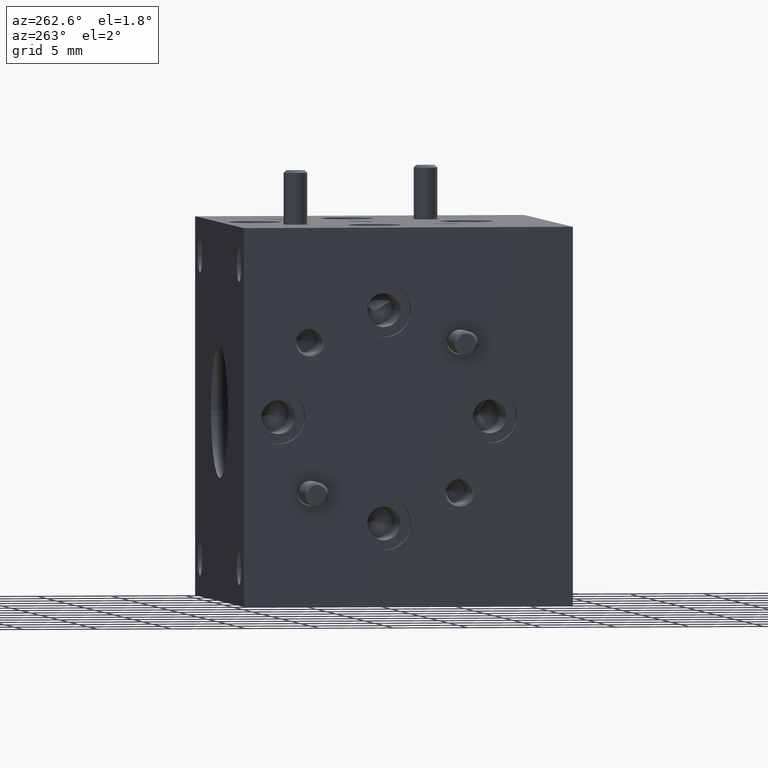
[diagram: clean part render]
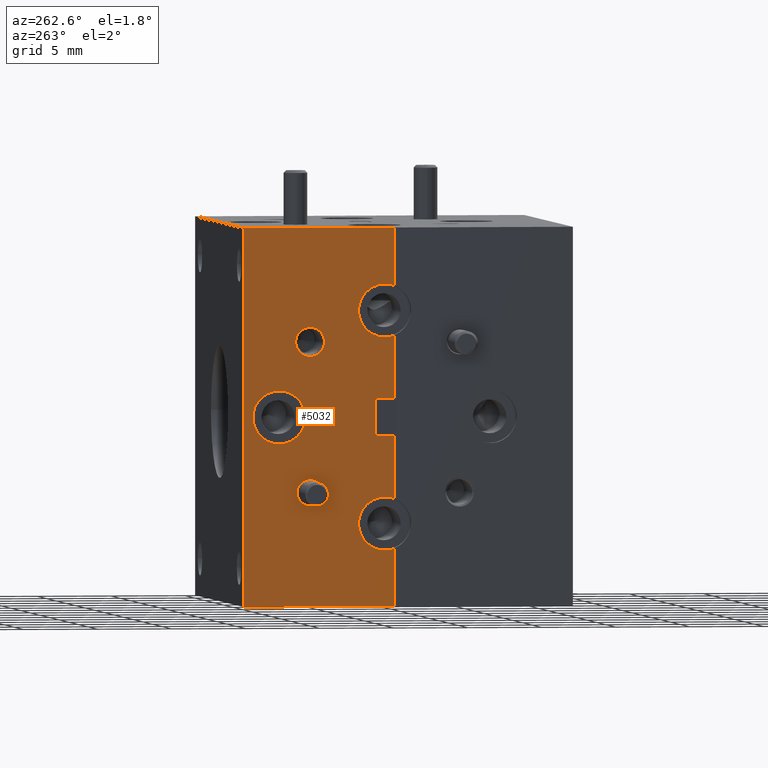
[diagram: same view with one face highlighted and labeled with its STEP entity id]
A machine part, auxiliary view. The second image highlights one B-rep face of the part: STEP entity #5032.
In plain terms, the highlighted planar face has unit normal (1, 0, -0).
Its self-contained STEP definition (entity closure, byte-faithful):
#89 = VERTEX_POINT ( 'NONE', #4391 ) ;
#350 = CARTESIAN_POINT ( 'NONE',  ( -0.5000000000000001100, 0.5000000000000001100, -0.2812499999999999400 ) ) ;
#382 = ORIENTED_EDGE ( 'NONE', *, *, #1348, .F. ) ;
#387 = VERTEX_POINT ( 'NONE', #9523 ) ;
#418 = VECTOR ( 'NONE', #3373, 39.37007874015748100 ) ;
#598 = CARTESIAN_POINT ( 'NONE',  ( -0.4999999999999997200, 0.8750000000000001100, 0.5000000000000003300 ) ) ;
#639 = ORIENTED_EDGE ( 'NONE', *, *, #7945, .F. ) ;
#683 = VERTEX_POINT ( 'NONE', #8428 ) ;
#685 = DIRECTION ( 'NONE',  ( 1.000000000000000000, 3.836456603060711000E-033, -4.996003610813204400E-016 ) ) ;
#698 = VERTEX_POINT ( 'NONE', #6007 ) ;
#735 = FACE_BOUND ( 'NONE', #3974, .T. ) ;
#744 = EDGE_CURVE ( 'NONE', #6267, #5608, #4653, .T. ) ;
#778 = VERTEX_POINT ( 'NONE', #2317 ) ;
#779 = CIRCLE ( 'NONE', #8604, 0.07000000000000003400 ) ;
#822 = DIRECTION ( 'NONE',  ( -1.000000000000000000, 7.679050901318801200E-018, 4.996003610813203400E-016 ) ) ;
#909 = CIRCLE ( 'NONE', #1688, 0.06999999999999985400 ) ;
#923 = CIRCLE ( 'NONE', #6819, 0.06999999999999985400 ) ;
#955 = ORIENTED_EDGE ( 'NONE', *, *, #1926, .F. ) ;
#976 = CARTESIAN_POINT ( 'NONE',  ( -0.5000000000000001100, 0.5000000000000001100, -0.2112499999999999400 ) ) ;
#1007 = VERTEX_POINT ( 'NONE', #7473 ) ;
#1048 = EDGE_CURVE ( 'NONE', #9516, #6267, #4918, .T. ) ;
#1098 = DIRECTION ( 'NONE',  ( 0.0000000000000000000, 0.0000000000000000000, 1.000000000000000000 ) ) ;
#1172 = AXIS2_PLACEMENT_3D ( 'NONE', #5731, #8958, #1098 ) ;
#1219 = EDGE_CURVE ( 'NONE', #7561, #2741, #8818, .T. ) ;
#1348 = EDGE_CURVE ( 'NONE', #89, #698, #923, .T. ) ;
#1369 = VECTOR ( 'NONE', #9622, 39.37007874015748100 ) ;
#1525 = ORIENTED_EDGE ( 'NONE', *, *, #4065, .T. ) ;
#1531 = VECTOR ( 'NONE', #2864, 39.37007874015748100 ) ;
#1539 = VECTOR ( 'NONE', #7253, 39.37007874015748100 ) ;
#1597 = LINE ( 'NONE', #5864, #1369 ) ;
#1671 = LINE ( 'NONE', #9991, #9451 ) ;
#1688 = AXIS2_PLACEMENT_3D ( 'NONE', #3617, #7582, #9126 ) ;
#1815 = VECTOR ( 'NONE', #6663, 39.37007874015748100 ) ;
#1926 = EDGE_CURVE ( 'NONE', #8378, #2894, #5509, .T. ) ;
#1943 = CARTESIAN_POINT ( 'NONE',  ( -0.5000000000020518000, 0.6988737822087165400, -0.1988737822087162700 ) ) ;
#2045 = AXIS2_PLACEMENT_3D ( 'NONE', #350, #7285, #4212 ) ;
#2053 = EDGE_LOOP ( 'NONE', ( #4079, #5567 ) ) ;
#2141 = DIRECTION ( 'NONE',  ( -1.000000000000000000, 7.679050901318799600E-018, 4.996003610813203400E-016 ) ) ;
#2167 = ORIENTED_EDGE ( 'NONE', *, *, #8974, .F. ) ;
#2180 = EDGE_CURVE ( 'NONE', #5608, #5479, #4911, .T. ) ;
#2211 = CARTESIAN_POINT ( 'NONE',  ( -0.4999999999999997200, 0.4750000000000000300, 0.5000000000000004400 ) ) ;
#2228 = DIRECTION ( 'NONE',  ( -4.996003610813204400E-016, 0.0000000000000000000, -1.000000000000000000 ) ) ;
#2249 = VERTEX_POINT ( 'NONE', #6095 ) ;
#2317 = CARTESIAN_POINT ( 'NONE',  ( -0.5000000000000001100, 0.4750000000000000300, -0.2158665158468898400 ) ) ;
#2423 = CARTESIAN_POINT ( 'NONE',  ( -0.4999999999999997800, 0.5000000000000001100, 0.3512500000000003400 ) ) ;
#2741 = VERTEX_POINT ( 'NONE', #7593 ) ;
#2864 = DIRECTION ( 'NONE',  ( -4.996003610813204400E-016, 0.0000000000000000000, -1.000000000000000000 ) ) ;
#2894 = VERTEX_POINT ( 'NONE', #7956 ) ;
#3011 = EDGE_LOOP ( 'NONE', ( #7225, #2167, #639, #6124, #4760, #5959, #8045, #3854, #6422, #4666, #3586, #1525, #5625, #9815, #955, #7807 ) ) ;
#3085 = EDGE_CURVE ( 'NONE', #3467, #8378, #7055, .T. ) ;
#3147 = FACE_OUTER_BOUND ( 'NONE', #3011, .T. ) ;
#3230 = CARTESIAN_POINT ( 'NONE',  ( -0.4999999999999998300, 0.4750000000000000300, 0.3466334841531104000 ) ) ;
#3244 = CARTESIAN_POINT ( 'NONE',  ( -0.4999999999999998300, 0.4750000000000000300, 0.2158665158468901200 ) ) ;
#3267 = ORIENTED_EDGE ( 'NONE', *, *, #8487, .F. ) ;
#3287 = EDGE_CURVE ( 'NONE', #5479, #5650, #779, .T. ) ;
#3294 = DIRECTION ( 'NONE',  ( 0.0000000000000000000, 0.0000000000000000000, 1.000000000000000000 ) ) ;
#3324 = EDGE_LOOP ( 'NONE', ( #382, #7672 ) ) ;
#3373 = DIRECTION ( 'NONE',  ( -4.996003610813204400E-016, 0.0000000000000000000, -1.000000000000000000 ) ) ;
#3428 = CARTESIAN_POINT ( 'NONE',  ( -0.4999999999946648200, 0.6988737822087165400, 0.1988737822087165400 ) ) ;
#3467 = VERTEX_POINT ( 'NONE', #976 ) ;
#3504 = DIRECTION ( 'NONE',  ( 9.756599977372368600E-016, 0.0000000000000000000, 1.000000000000000000 ) ) ;
#3550 = DIRECTION ( 'NONE',  ( 0.0000000000000000000, -1.000000000000000000, 0.0000000000000000000 ) ) ;
#3586 = ORIENTED_EDGE ( 'NONE', *, *, #3886, .F. ) ;
#3617 = CARTESIAN_POINT ( 'NONE',  ( -0.5000000000000000000, 0.7812500000000000000, 2.498937752317294800E-016 ) ) ;
#3679 = EDGE_CURVE ( 'NONE', #2741, #7561, #9760, .T. ) ;
#3710 = DIRECTION ( 'NONE',  ( -1.000000000000000000, 7.679050901318801200E-018, 4.996003610813203400E-016 ) ) ;
#3748 = DIRECTION ( 'NONE',  ( -1.000000000000000000, 7.679050901318801200E-018, 4.996003610813203400E-016 ) ) ;
#3854 = ORIENTED_EDGE ( 'NONE', *, *, #2180, .F. ) ;
#3886 = EDGE_CURVE ( 'NONE', #8155, #9516, #9022, .T. ) ;
#3897 = CARTESIAN_POINT ( 'NONE',  ( -0.4999999999999998300, 0.5000000000000001100, 0.2812500000000002800 ) ) ;
#3949 = CIRCLE ( 'NONE', #1172, 0.03849999999589469300 ) ;
#3974 = EDGE_LOOP ( 'NONE', ( #3267, #9403 ) ) ;
#3993 = LINE ( 'NONE', #7828, #9113 ) ;
#3998 = EDGE_CURVE ( 'NONE', #778, #3467, #6079, .T. ) ;
#4065 = EDGE_CURVE ( 'NONE', #8155, #7221, #1597, .T. ) ;
#4079 = ORIENTED_EDGE ( 'NONE', *, *, #3679, .F. ) ;
#4212 = DIRECTION ( 'NONE',  ( 9.756599977372368600E-016, 0.0000000000000000000, 1.000000000000000000 ) ) ;
#4261 = DIRECTION ( 'NONE',  ( -1.000000000000000000, 9.826791343106473700E-016, 0.0000000000000000000 ) ) ;
#4391 = CARTESIAN_POINT ( 'NONE',  ( -0.4999999999999999400, 0.7812500000000000000, 0.07000000000000010400 ) ) ;
#4477 = DIRECTION ( 'NONE',  ( 9.756599977372364700E-016, 0.0000000000000000000, 1.000000000000000000 ) ) ;
#4503 = CARTESIAN_POINT ( 'NONE',  ( -0.4999999999999998300, 0.5000000000000001100, 0.2812500000000002800 ) ) ;
#4557 = AXIS2_PLACEMENT_3D ( 'NONE', #8142, #4261, #9722 ) ;
#4591 = CARTESIAN_POINT ( 'NONE',  ( -0.5000000000000001100, 0.5000000000000001100, -0.2812499999999999400 ) ) ;
#4624 = VECTOR ( 'NONE', #5587, 39.37007874015748100 ) ;
#4653 = CIRCLE ( 'NONE', #9556, 0.07000000000000003400 ) ;
#4655 = DIRECTION ( 'NONE',  ( -1.000000000000000000, 7.679050901318802700E-018, 4.996003610813203400E-016 ) ) ;
#4666 = ORIENTED_EDGE ( 'NONE', *, *, #1048, .F. ) ;
#4760 = ORIENTED_EDGE ( 'NONE', *, *, #5456, .F. ) ;
#4868 = AXIS2_PLACEMENT_3D ( 'NONE', #3897, #822, #7763 ) ;
#4911 = CIRCLE ( 'NONE', #4868, 0.07000000000000003400 ) ;
#4918 = LINE ( 'NONE', #7509, #1531 ) ;
#5032 = ADVANCED_FACE ( 'NONE', ( #3147, #9000, #735, #8262 ), #8385, .F. ) ;
#5102 = CARTESIAN_POINT ( 'NONE',  ( -0.4999999999999999400, 0.5000000000000001100, 0.2112500000000002400 ) ) ;
#5219 = EDGE_CURVE ( 'NONE', #2894, #387, #3993, .T. ) ;
#5260 = VERTEX_POINT ( 'NONE', #6389 ) ;
#5275 = DIRECTION ( 'NONE',  ( 9.756599977372388400E-016, 0.0000000000000000000, 1.000000000000000000 ) ) ;
#5297 = LINE ( 'NONE', #9190, #6981 ) ;
#5456 = EDGE_CURVE ( 'NONE', #683, #9473, #8001, .T. ) ;
#5479 = VERTEX_POINT ( 'NONE', #5102 ) ;
#5508 = CARTESIAN_POINT ( 'NONE',  ( -0.4999999999999999400, 0.5250000000000000200, 0.05000000000000021100 ) ) ;
#5509 = CIRCLE ( 'NONE', #6623, 0.07000000000000000700 ) ;
#5567 = ORIENTED_EDGE ( 'NONE', *, *, #1219, .F. ) ;
#5587 = DIRECTION ( 'NONE',  ( 3.836456603060711000E-033, -1.000000000000000000, -1.916695104161947300E-048 ) ) ;
#5608 = VERTEX_POINT ( 'NONE', #2423 ) ;
#5625 = ORIENTED_EDGE ( 'NONE', *, *, #7753, .T. ) ;
#5632 = CARTESIAN_POINT ( 'NONE',  ( -0.5000000000000002200, 0.5000000000000001100, -0.3512499999999999500 ) ) ;
#5650 = VERTEX_POINT ( 'NONE', #3244 ) ;
#5731 = CARTESIAN_POINT ( 'NONE',  ( -0.4999999999946648200, 0.6988737822087165400, 0.1988737822087165400 ) ) ;
#5864 = CARTESIAN_POINT ( 'NONE',  ( -0.4999999999999997200, 0.8750000000000001100, 0.0000000000000000000 ) ) ;
#5959 = ORIENTED_EDGE ( 'NONE', *, *, #7504, .F. ) ;
#6007 = CARTESIAN_POINT ( 'NONE',  ( -0.5000000000000001100, 0.7812500000000000000, -0.06999999999999960400 ) ) ;
#6079 = CIRCLE ( 'NONE', #9453, 0.07000000000000000700 ) ;
#6095 = CARTESIAN_POINT ( 'NONE',  ( -0.4999999999946648200, 0.6988737822087165400, 0.2373737822046112800 ) ) ;
#6105 = EDGE_CURVE ( 'NONE', #9473, #6506, #1671, .T. ) ;
#6124 = ORIENTED_EDGE ( 'NONE', *, *, #6105, .F. ) ;
#6267 = VERTEX_POINT ( 'NONE', #3230 ) ;
#6271 = DIRECTION ( 'NONE',  ( 3.836456603060711000E-033, -1.000000000000000000, -1.916695104161947300E-048 ) ) ;
#6342 = LINE ( 'NONE', #8012, #418 ) ;
#6363 = VECTOR ( 'NONE', #6271, 39.37007874015748100 ) ;
#6389 = CARTESIAN_POINT ( 'NONE',  ( -0.4999999999999999400, 0.4750000000000000300, -0.04999999999999970400 ) ) ;
#6422 = ORIENTED_EDGE ( 'NONE', *, *, #744, .F. ) ;
#6506 = VERTEX_POINT ( 'NONE', #7317 ) ;
#6614 = LINE ( 'NONE', #7037, #6363 ) ;
#6623 = AXIS2_PLACEMENT_3D ( 'NONE', #4591, #4655, #8538 ) ;
#6624 = LINE ( 'NONE', #8061, #1539 ) ;
#6663 = DIRECTION ( 'NONE',  ( -3.836456603060711000E-033, 1.000000000000000000, 1.916695104161947300E-048 ) ) ;
#6819 = AXIS2_PLACEMENT_3D ( 'NONE', #9108, #2141, #5275 ) ;
#6981 = VECTOR ( 'NONE', #8394, 39.37007874015748100 ) ;
#7037 = CARTESIAN_POINT ( 'NONE',  ( -0.5000000000000000000, 0.4750000000000000300, -0.04999999999999967000 ) ) ;
#7055 = CIRCLE ( 'NONE', #2045, 0.07000000000000000700 ) ;
#7221 = VERTEX_POINT ( 'NONE', #9413 ) ;
#7225 = ORIENTED_EDGE ( 'NONE', *, *, #3998, .F. ) ;
#7253 = DIRECTION ( 'NONE',  ( -4.996003610813204400E-016, 0.0000000000000000000, -1.000000000000000000 ) ) ;
#7285 = DIRECTION ( 'NONE',  ( -1.000000000000000000, 7.679050901318802700E-018, 4.996003610813203400E-016 ) ) ;
#7317 = CARTESIAN_POINT ( 'NONE',  ( -0.4999999999999999400, 0.5250000000000000200, -0.04999999999999967000 ) ) ;
#7326 = CARTESIAN_POINT ( 'NONE',  ( -0.5000000000000001100, 0.5000000000000001100, -0.2812499999999999400 ) ) ;
#7473 = CARTESIAN_POINT ( 'NONE',  ( -0.4999999999946648200, 0.6988737822087165400, 0.1603737822128218400 ) ) ;
#7504 = EDGE_CURVE ( 'NONE', #5650, #683, #6624, .T. ) ;
#7509 = CARTESIAN_POINT ( 'NONE',  ( -0.4999999999999997200, 0.4750000000000000300, 0.5000000000000004400 ) ) ;
#7561 = VERTEX_POINT ( 'NONE', #8097 ) ;
#7582 = DIRECTION ( 'NONE',  ( -1.000000000000000000, 7.679050901318799600E-018, 4.996003610813203400E-016 ) ) ;
#7593 = CARTESIAN_POINT ( 'NONE',  ( -0.5000000000020518000, 0.6641237822073842200, -0.1988737822087162700 ) ) ;
#7648 = DIRECTION ( 'NONE',  ( 9.756599977372364700E-016, 0.0000000000000000000, 1.000000000000000000 ) ) ;
#7672 = ORIENTED_EDGE ( 'NONE', *, *, #8531, .F. ) ;
#7753 = EDGE_CURVE ( 'NONE', #7221, #387, #5297, .T. ) ;
#7763 = DIRECTION ( 'NONE',  ( 9.756599977372364700E-016, 0.0000000000000000000, 1.000000000000000000 ) ) ;
#7807 = ORIENTED_EDGE ( 'NONE', *, *, #3085, .F. ) ;
#7828 = CARTESIAN_POINT ( 'NONE',  ( -0.4999999999999997200, 0.4750000000000000300, 0.5000000000000004400 ) ) ;
#7912 = CARTESIAN_POINT ( 'NONE',  ( -0.4999999999999997200, 0.4750000000000000300, 0.5000000000000004400 ) ) ;
#7945 = EDGE_CURVE ( 'NONE', #6506, #5260, #6614, .T. ) ;
#7956 = CARTESIAN_POINT ( 'NONE',  ( -0.5000000000000001100, 0.4750000000000000300, -0.3466334841531099600 ) ) ;
#7983 = DIRECTION ( 'NONE',  ( -1.000000000000000000, 0.0000000000000000000, 0.0000000000000000000 ) ) ;
#8001 = LINE ( 'NONE', #9775, #1815 ) ;
#8012 = CARTESIAN_POINT ( 'NONE',  ( -0.4999999999999997200, 0.4750000000000000300, 0.5000000000000004400 ) ) ;
#8045 = ORIENTED_EDGE ( 'NONE', *, *, #3287, .F. ) ;
#8061 = CARTESIAN_POINT ( 'NONE',  ( -0.4999999999999997200, 0.4750000000000000300, 0.5000000000000004400 ) ) ;
#8097 = CARTESIAN_POINT ( 'NONE',  ( -0.5000000000020518000, 0.7336237822100488700, -0.1988737822087162700 ) ) ;
#8125 = DIRECTION ( 'NONE',  ( -1.000000000000000000, 7.679050901318802700E-018, 4.996003610813203400E-016 ) ) ;
#8142 = CARTESIAN_POINT ( 'NONE',  ( -0.5000000000020518000, 0.6988737822087165400, -0.1988737822087162700 ) ) ;
#8155 = VERTEX_POINT ( 'NONE', #598 ) ;
#8262 = FACE_BOUND ( 'NONE', #3324, .T. ) ;
#8378 = VERTEX_POINT ( 'NONE', #5632 ) ;
#8385 = PLANE ( 'NONE',  #9807 ) ;
#8394 = DIRECTION ( 'NONE',  ( 0.0000000000000000000, -1.000000000000000000, -1.103398394531687200E-018 ) ) ;
#8428 = CARTESIAN_POINT ( 'NONE',  ( -0.4999999999999998300, 0.4750000000000000300, 0.05000000000000021100 ) ) ;
#8449 = DIRECTION ( 'NONE',  ( -4.996003610813204400E-016, 0.0000000000000000000, -1.000000000000000000 ) ) ;
#8487 = EDGE_CURVE ( 'NONE', #2249, #1007, #3949, .T. ) ;
#8519 = DIRECTION ( 'NONE',  ( -4.996003610813204400E-016, 0.0000000000000000000, -1.000000000000000000 ) ) ;
#8531 = EDGE_CURVE ( 'NONE', #698, #89, #909, .T. ) ;
#8538 = DIRECTION ( 'NONE',  ( 9.756599977372368600E-016, 0.0000000000000000000, 1.000000000000000000 ) ) ;
#8551 = CIRCLE ( 'NONE', #8641, 0.03849999999589469300 ) ;
#8604 = AXIS2_PLACEMENT_3D ( 'NONE', #4503, #3710, #4477 ) ;
#8641 = AXIS2_PLACEMENT_3D ( 'NONE', #3428, #7983, #3294 ) ;
#8818 = CIRCLE ( 'NONE', #9955, 0.03475000000133227100 ) ;
#8958 = DIRECTION ( 'NONE',  ( -1.000000000000000000, 0.0000000000000000000, 0.0000000000000000000 ) ) ;
#8974 = EDGE_CURVE ( 'NONE', #5260, #778, #6342, .T. ) ;
#9000 = FACE_BOUND ( 'NONE', #2053, .T. ) ;
#9006 = EDGE_CURVE ( 'NONE', #1007, #2249, #8551, .T. ) ;
#9022 = LINE ( 'NONE', #7912, #4624 ) ;
#9037 = DIRECTION ( 'NONE',  ( -1.000000000000000000, 9.826791343106473700E-016, 0.0000000000000000000 ) ) ;
#9108 = CARTESIAN_POINT ( 'NONE',  ( -0.5000000000000000000, 0.7812500000000000000, 2.498937752317294800E-016 ) ) ;
#9113 = VECTOR ( 'NONE', #8519, 39.37007874015748100 ) ;
#9126 = DIRECTION ( 'NONE',  ( 9.756599977372388400E-016, 0.0000000000000000000, 1.000000000000000000 ) ) ;
#9190 = CARTESIAN_POINT ( 'NONE',  ( -0.5000000000000002200, 0.4750000000000000300, -0.4999999999999997200 ) ) ;
#9251 = CARTESIAN_POINT ( 'NONE',  ( -0.4999999999999998300, 0.5000000000000001100, 0.2812500000000002800 ) ) ;
#9403 = ORIENTED_EDGE ( 'NONE', *, *, #9006, .F. ) ;
#9413 = CARTESIAN_POINT ( 'NONE',  ( -0.5000000000000002200, 0.8750000000000001100, -0.4999999999999997200 ) ) ;
#9440 = CARTESIAN_POINT ( 'NONE',  ( -0.4999999999999997800, 0.4750000000000000300, 0.5000000000000004400 ) ) ;
#9451 = VECTOR ( 'NONE', #2228, 39.37007874015748100 ) ;
#9453 = AXIS2_PLACEMENT_3D ( 'NONE', #7326, #8125, #3504 ) ;
#9473 = VERTEX_POINT ( 'NONE', #5508 ) ;
#9516 = VERTEX_POINT ( 'NONE', #9440 ) ;
#9523 = CARTESIAN_POINT ( 'NONE',  ( -0.5000000000000003300, 0.4750000000000000300, -0.4999999999999997800 ) ) ;
#9556 = AXIS2_PLACEMENT_3D ( 'NONE', #9251, #3748, #7648 ) ;
#9622 = DIRECTION ( 'NONE',  ( 8.473052436043294900E-036, 1.103398394531812400E-018, -1.000000000000000000 ) ) ;
#9722 = DIRECTION ( 'NONE',  ( 0.0000000000000000000, -1.000000000000000000, 0.0000000000000000000 ) ) ;
#9760 = CIRCLE ( 'NONE', #4557, 0.03475000000133227100 ) ;
#9775 = CARTESIAN_POINT ( 'NONE',  ( -0.4999999999999999400, 0.4750000000000000300, 0.05000000000000021800 ) ) ;
#9807 = AXIS2_PLACEMENT_3D ( 'NONE', #2211, #685, #8449 ) ;
#9815 = ORIENTED_EDGE ( 'NONE', *, *, #5219, .F. ) ;
#9955 = AXIS2_PLACEMENT_3D ( 'NONE', #1943, #9037, #3550 ) ;
#9991 = CARTESIAN_POINT ( 'NONE',  ( -0.4999999999999997200, 0.5250000000000000200, 0.5000000000000004400 ) ) ;